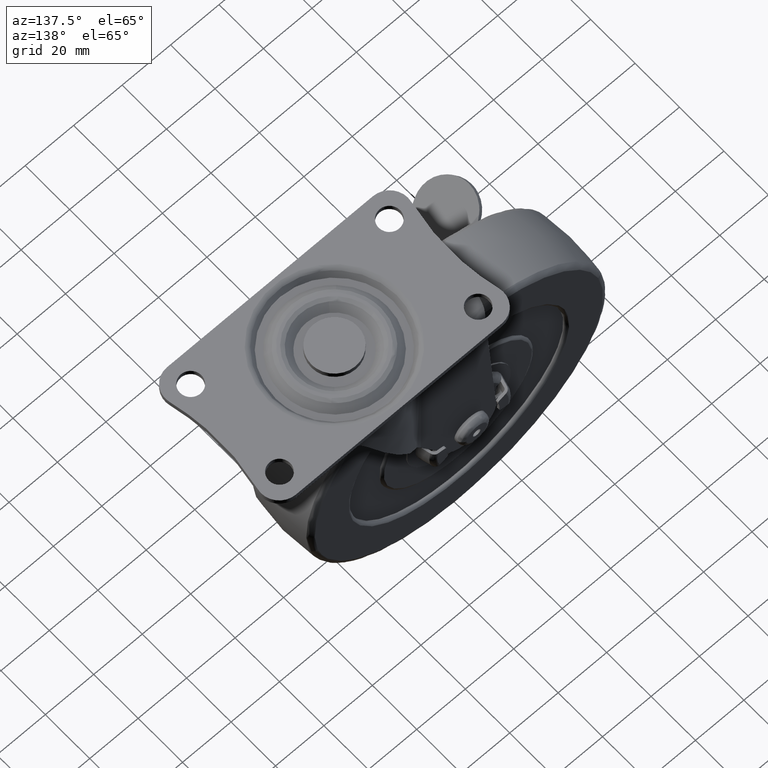
[diagram: clean part render]
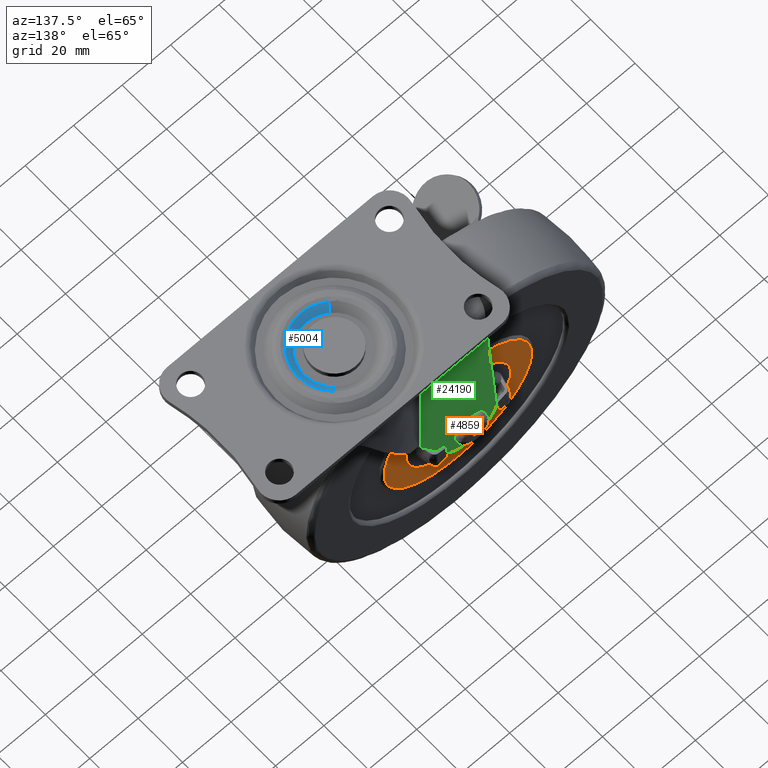
[diagram: same view with three faces highlighted in distinct colors, each labeled with its STEP entity id]
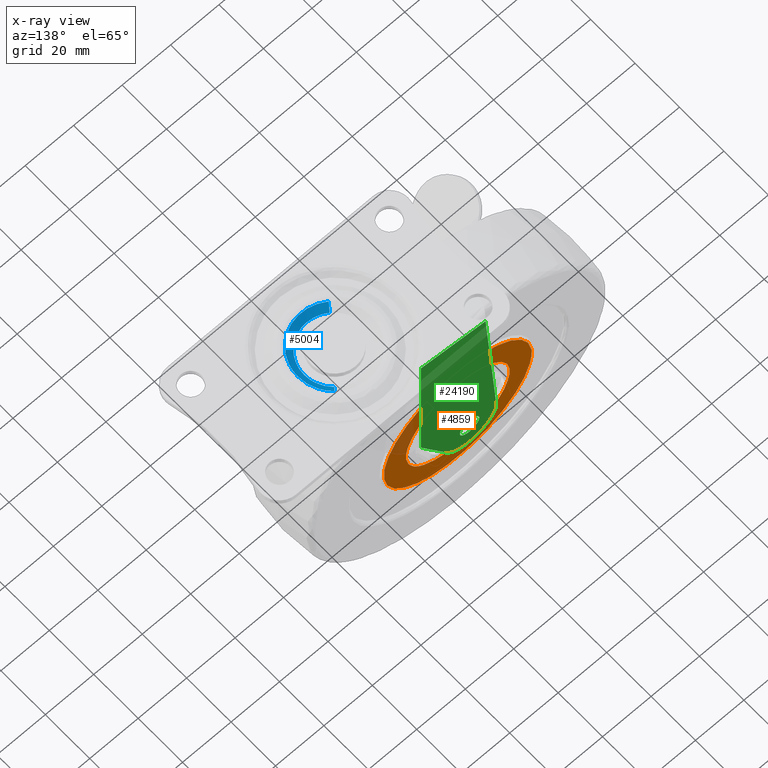
[diagram: x-ray of the same camera — body ghosted, the three highlighted faces saturated]
A machine part, auxiliary view with three faces highlighted in distinct colors.
The next image is the same camera in x-ray (body ghosted, the three faces saturated) — at least one of them is partly hidden behind the body in this view.
Their STEP definitions:

[orange] entity #4859 — the highlighted face is a freeform B-spline surface patch.
#341=CARTESIAN_POINT('',(-14.999457598083460,13.0,-15.263558694621940));
#342=VERTEX_POINT('',#341);
#348=CARTESIAN_POINT('',(-21.399999999999530,13.0,0.000004462280184));
#349=VERTEX_POINT('',#348);
#350=CARTESIAN_POINT('',(-14.999457598083460,13.0,-15.263558694621940));
#351=CARTESIAN_POINT('',(-16.199234600044409,13.0,-14.085064083934130));
#352=CARTESIAN_POINT('',(-18.262711877267542,13.000000000000020,-11.512706117761830));
#353=CARTESIAN_POINT('',(-20.071149148300570,12.999999999999970,-7.737484863761214));
#354=CARTESIAN_POINT('',(-21.146793419577381,13.000000000000050,-3.894419569668775));
#355=CARTESIAN_POINT('',(-21.400266748533738,12.999999999999970,-1.504721560239965));
#356=CARTESIAN_POINT('',(-21.399999999999530,13.0,0.000004462280184));
#357=B_SPLINE_CURVE_WITH_KNOTS('',3,(#350,#351,#352,#353,#354,#355,#356),.UNSPECIFIED.,.F.,.U.,(4,1,1,1,4),(0.000000043235449,5.045217000118539,9.824843374919411,12.480249518190050,16.994383786819110),.UNSPECIFIED.);
#358=EDGE_CURVE('',#342,#349,#357,.T.);
#360=CARTESIAN_POINT('',(0.0,13.0,21.399999999999999));
#361=VERTEX_POINT('',#360);
#362=CARTESIAN_POINT('',(-21.399999999999530,13.0,0.000004462280184));
#363=CARTESIAN_POINT('',(-21.400166145443610,13.000000000000011,1.488149907927293));
#364=CARTESIAN_POINT('',(-21.061042615102430,12.999999999999959,4.727133469329172));
#365=CARTESIAN_POINT('',(-19.626547902846632,13.000000000000091,8.897230360487237));
#366=CARTESIAN_POINT('',(-17.659966996768851,12.999999999999840,12.223490391673170));
#367=CARTESIAN_POINT('',(-15.505550436836909,13.000000000000240,14.881896763776981));
#368=CARTESIAN_POINT('',(-13.213149344947491,12.999999999999860,16.934143466605740));
#369=CARTESIAN_POINT('',(-10.578097900945391,13.000000000000041,18.671446317348469));
#370=CARTESIAN_POINT('',(-8.132714586972684,13.000000000000140,19.864949785670131));
#371=CARTESIAN_POINT('',(-4.551782247253562,12.999999999999790,21.048057301476980));
#372=CARTESIAN_POINT('',(-1.838385655638134,13.000000000000121,21.400597538661700));
#373=CARTESIAN_POINT('',(0.0,13.0,21.399999999999999));
#374=B_SPLINE_CURVE_WITH_KNOTS('',3,(#362,#363,#364,#365,#366,#367,#368,#369,#370,#371,#372,#373),.UNSPECIFIED.,.F.,.U.,(4,1,1,1,1,1,1,1,1,4),(0.000000119827241,4.464480332643383,9.716924076704739,13.130996557176211,16.019857173357220,19.958990738042250,22.322610503430280,25.474062481329170,28.100280142519029,33.615249798499470),.UNSPECIFIED.);
#375=EDGE_CURVE('',#349,#361,#374,.T.);
#377=CARTESIAN_POINT('',(21.399999999999530,13.0,-0.000004462280174));
#378=VERTEX_POINT('',#377);
#379=CARTESIAN_POINT('',(0.0,13.0,21.399999999999999));
#380=CARTESIAN_POINT('',(1.137986750092563,13.000000000000020,21.400041196904478));
#381=CARTESIAN_POINT('',(3.764205498987456,12.999999999999980,21.190196727932729));
#382=CARTESIAN_POINT('',(7.162965183895405,12.999999999999989,20.272044794821401));
#383=CARTESIAN_POINT('',(10.591748805980940,13.000000000000041,18.701501533709290));
#384=CARTESIAN_POINT('',(13.444083189804880,12.999999999999931,16.795671912854619));
#385=CARTESIAN_POINT('',(16.036397300099530,13.000000000000050,14.296908462654560));
#386=CARTESIAN_POINT('',(18.215610886097299,12.999999999999959,11.432856975091530));
#387=CARTESIAN_POINT('',(20.038765689711472,13.000000000000020,7.919378150864452));
#388=CARTESIAN_POINT('',(21.166389185856382,12.999999999999989,3.939229068232123));
#389=CARTESIAN_POINT('',(21.400066840773629,13.0,1.225525087528824));
#390=CARTESIAN_POINT('',(21.399999999999530,13.0,-0.000004462280174));
#391=B_SPLINE_CURVE_WITH_KNOTS('',3,(#379,#380,#381,#382,#383,#384,#385,#386,#387,#388,#389,#390),.UNSPECIFIED.,.F.,.U.,(4,1,1,1,1,1,1,1,1,4),(0.000000118282898,3.414005411149013,7.878571120669303,10.504790530938051,14.706678523279910,18.120642072758550,21.272116336369791,25.474066293722441,29.938645119108141,33.615254828560722),.UNSPECIFIED.);
#392=EDGE_CURVE('',#361,#378,#391,.T.);
#394=CARTESIAN_POINT('',(15.263560291745190,13.0,-14.999459155562359));
#395=VERTEX_POINT('',#394);
#396=CARTESIAN_POINT('',(21.399999999999530,13.0,-0.000004462280174));
#397=CARTESIAN_POINT('',(21.400380146424041,12.999999999999980,-1.644806273393332));
#398=CARTESIAN_POINT('',(21.088974731094869,13.000000000000030,-4.328188812983380));
#399=CARTESIAN_POINT('',(19.870291796351101,12.999999999999989,-8.221357010151010));
#400=CARTESIAN_POINT('',(18.086293362224190,13.000000000000050,-11.704994304769830));
#401=CARTESIAN_POINT('',(16.295184904170160,12.999999999999959,-13.949942126637239));
#402=CARTESIAN_POINT('',(15.263560291745190,13.0,-14.999459155562359));
#403=B_SPLINE_CURVE_WITH_KNOTS('',3,(#396,#397,#398,#399,#400,#401,#402),.UNSPECIFIED.,.F.,.U.,(4,1,1,1,4),(0.000000048413728,4.934321486368699,8.050759430382469,12.205946946968030,16.620868586272810),.UNSPECIFIED.);
#404=EDGE_CURVE('',#378,#395,#403,.T.);
#441=CARTESIAN_POINT('',(0.0,13.0,-21.399999999999999));
#442=VERTEX_POINT('',#441);
#443=CARTESIAN_POINT('',(15.263560291745190,13.0,-14.999459155562359));
#444=CARTESIAN_POINT('',(14.209071081765421,13.0,-16.072889629275132));
#445=CARTESIAN_POINT('',(12.353326343013659,12.999999999999980,-17.599689584263789));
#446=CARTESIAN_POINT('',(8.892474991636600,13.000000000000030,-19.586794429970752));
#447=CARTESIAN_POINT('',(4.956532786388010,12.999999999999980,-21.012015005515391));
#448=CARTESIAN_POINT('',(1.681752708444515,13.000000000000011,-21.400322760488692));
#449=CARTESIAN_POINT('',(0.0,13.0,-21.399999999999999));
#450=B_SPLINE_CURVE_WITH_KNOTS('',3,(#443,#444,#445,#446,#447,#448,#449),.UNSPECIFIED.,.F.,.U.,(4,1,1,1,4),(0.000000043206899,4.514133364085412,7.169538949831114,11.949164321165121,16.994380218791900),.UNSPECIFIED.);
#451=EDGE_CURVE('',#395,#442,#450,.T.);
#453=CARTESIAN_POINT('',(0.0,13.0,-21.399999999999999));
#454=CARTESIAN_POINT('',(-0.952223451578515,13.000000000000011,-21.400011581623222));
#455=CARTESIAN_POINT('',(-3.289549519116116,12.999999999999989,-21.243862841954300));
#456=CARTESIAN_POINT('',(-6.591802872307427,13.000000000000011,-20.468735230164491));
#457=CARTESIAN_POINT('',(-9.629050196834900,12.999999999999980,-19.182711877928909));
#458=CARTESIAN_POINT('',(-12.391230663326350,13.000000000000020,-17.549581269754309));
#459=CARTESIAN_POINT('',(-14.073391725202720,13.000000000000050,-16.173792978690560));
#460=CARTESIAN_POINT('',(-14.999457598083460,13.0,-15.263558694621940));
#461=B_SPLINE_CURVE_WITH_KNOTS('',3,(#453,#454,#455,#456,#457,#458,#459,#460),.UNSPECIFIED.,.F.,.U.,(4,1,1,1,1,4),(0.000000048387705,2.856698859118625,7.011956524252936,10.128334959274220,12.725358716434480,16.620872190896510),.UNSPECIFIED.);
#462=EDGE_CURVE('',#442,#342,#461,.T.);
#1714=CARTESIAN_POINT('',(-10.775710017537680,12.999999999999989,-28.533034879077810));
#1715=VERTEX_POINT('',#1714);
#1726=CARTESIAN_POINT('',(0.0,13.0,-30.500000000000000));
#1727=VERTEX_POINT('',#1726);
#1728=CARTESIAN_POINT('',(0.0,13.0,-30.500000000000000));
#1729=CARTESIAN_POINT('',(-1.950326551123727,13.000000000000030,-30.500262466162368));
#1730=CARTESIAN_POINT('',(-5.621380401909918,12.999999999999959,-30.146542498187120));
#1731=CARTESIAN_POINT('',(-9.165869497514029,13.000000000000011,-29.141156856346338));
#1732=CARTESIAN_POINT('',(-10.775710017537680,12.999999999999989,-28.533034879077810));
#1733=B_SPLINE_CURVE_WITH_KNOTS('',3,(#1728,#1729,#1730,#1731,#1732),.UNSPECIFIED.,.F.,.U.,(4,1,4),(7.056201E-009,5.850947564591087,11.013558242283100),.UNSPECIFIED.);
#1734=EDGE_CURVE('',#1727,#1715,#1733,.T.);
#1736=CARTESIAN_POINT('',(30.499999999999769,13.0,-0.000003732893796));
#1737=VERTEX_POINT('',#1736);
#1738=CARTESIAN_POINT('',(30.499999999999769,13.0,-0.000003732893796));
#1739=CARTESIAN_POINT('',(30.500621004749629,13.0,-2.432954617941308));
#1740=CARTESIAN_POINT('',(30.019624236460022,13.000000000000020,-6.425100903868943));
#1741=CARTESIAN_POINT('',(28.502884161946689,13.0,-11.063542281389450));
#1742=CARTESIAN_POINT('',(26.816510864033042,13.000000000000011,-14.686425201594190));
#1743=CARTESIAN_POINT('',(24.507784932465150,13.0,-18.408062929629530));
#1744=CARTESIAN_POINT('',(21.133797562240431,13.000000000000011,-22.200158376957809));
#1745=CARTESIAN_POINT('',(16.775709568676110,13.0,-25.666263442198691));
#1746=CARTESIAN_POINT('',(11.751966971773420,13.000000000000011,-28.371712412779669));
#1747=CARTESIAN_POINT('',(5.926193085948219,13.000000000000011,-30.119069941179770));
#1748=CARTESIAN_POINT('',(1.933845258521732,13.0,-30.500213238721329));
#1749=CARTESIAN_POINT('',(0.0,13.0,-30.500000000000000));
#1750=B_SPLINE_CURVE_WITH_KNOTS('',3,(#1738,#1739,#1740,#1741,#1742,#1743,#1744,#1745,#1746,#1747,#1748,#1749),.UNSPECIFIED.,.F.,.U.,(4,1,1,1,1,1,1,1,1,4),(0.000000162764785,7.298679614567355,11.977340525399001,14.597387641798820,19.276056271426171,25.077505158912910,29.756176943270880,35.932020800778901,42.107864656551683,47.909361019094369),.UNSPECIFIED.);
#1751=EDGE_CURVE('',#1737,#1727,#1750,.T.);
#1753=CARTESIAN_POINT('',(0.0,13.0,30.500000000000000));
#1754=VERTEX_POINT('',#1753);
#1755=CARTESIAN_POINT('',(0.0,13.0,30.500000000000000));
#1756=CARTESIAN_POINT('',(2.432953534480247,12.999999999999980,30.500624515964319));
#1757=CARTESIAN_POINT('',(6.425090811971906,12.999999999999980,30.019612403884299));
#1758=CARTESIAN_POINT('',(11.241953674009720,13.000000000000060,28.444553929886460));
#1759=CARTESIAN_POINT('',(15.189103224331131,13.000000000000069,26.562927970091600));
#1760=CARTESIAN_POINT('',(18.743618387248969,12.999999999999901,24.219295521404909));
#1761=CARTESIAN_POINT('',(22.347821468448359,13.000000000000080,20.932388874324861));
#1762=CARTESIAN_POINT('',(25.685434001609849,13.000000000000011,16.788701675475650));
#1763=CARTESIAN_POINT('',(28.420438801771461,12.999999999999790,11.634303420545409));
#1764=CARTESIAN_POINT('',(30.130908929878430,13.000000000000320,5.801430548480487));
#1765=CARTESIAN_POINT('',(30.500226084624622,12.999999999999480,1.933838962632630));
#1766=CARTESIAN_POINT('',(30.499999999999769,13.0,-0.000003732893796));
#1767=B_SPLINE_CURVE_WITH_KNOTS('',3,(#1755,#1756,#1757,#1758,#1759,#1760,#1761,#1762,#1763,#1764,#1765,#1766),.UNSPECIFIED.,.F.,.U.,(4,1,1,1,1,1,1,1,1,4),(0.000000162491354,7.298680255709328,11.977341577115730,15.158851344719750,20.398914474985730,24.703228457905990,29.756179558813589,36.306316244074182,42.107868355974922,47.909365226942199),.UNSPECIFIED.);
#1768=EDGE_CURVE('',#1754,#1737,#1767,.T.);
#1770=CARTESIAN_POINT('',(-30.500000003521169,13.0,3.546847E-015));
#1771=VERTEX_POINT('',#1770);
#1772=CARTESIAN_POINT('',(-30.500000003521169,13.0,3.546847E-015));
#1773=CARTESIAN_POINT('',(-30.500018148033082,12.999999999999989,1.372375797248120));
#1774=CARTESIAN_POINT('',(-30.276649115736820,13.000000000000041,4.678641604321212));
#1775=CARTESIAN_POINT('',(-29.161947988861641,12.999999999999940,9.437640540332902));
#1776=CARTESIAN_POINT('',(-27.277223706738230,13.000000000000020,13.871278233698719));
#1777=CARTESIAN_POINT('',(-24.725586476736162,12.999999999999989,18.099429808712891));
#1778=CARTESIAN_POINT('',(-21.420053186310039,12.999999999999989,21.955342574232020));
#1779=CARTESIAN_POINT('',(-17.617342752970199,13.000000000000011,25.017741368585661));
#1780=CARTESIAN_POINT('',(-14.080457495190380,13.000000000000020,27.137591562949542));
#1781=CARTESIAN_POINT('',(-10.770352140187461,12.999999999999970,28.617015553871791));
#1782=CARTESIAN_POINT('',(-6.050799684668885,13.000000000000041,30.064714988375862));
#1783=CARTESIAN_POINT('',(-2.432949724962354,12.999999999999901,30.500574210162011));
#1784=CARTESIAN_POINT('',(0.0,13.0,30.500000000000000));
#1785=B_SPLINE_CURVE_WITH_KNOTS('',3,(#1772,#1773,#1774,#1775,#1776,#1777,#1778,#1779,#1780,#1781,#1782,#1783,#1784),.UNSPECIFIED.,.F.,.U.,(4,1,1,1,1,1,1,1,1,1,4),(0.000000162695194,4.117149611645701,9.918722003114247,14.597388283752560,18.527482705596981,24.703227373485230,29.756178253468711,33.124809613105398,37.054900541147703,40.610702902157328,47.909363126888131),.UNSPECIFIED.);
#1786=EDGE_CURVE('',#1771,#1754,#1785,.T.);
#1882=CARTESIAN_POINT('',(-10.775710017537680,12.999999999999989,-28.533034879077810));
#1883=CARTESIAN_POINT('',(-12.843290181633879,13.0,-27.752668050122409));
#1884=CARTESIAN_POINT('',(-15.859224589502430,13.000000000000030,-26.220669941670849));
#1885=CARTESIAN_POINT('',(-19.887597061520449,13.0,-23.251489943192780));
#1886=CARTESIAN_POINT('',(-23.340379485353829,13.000000000000011,-19.888851955774740));
#1887=CARTESIAN_POINT('',(-26.814309546383509,13.000000000000011,-15.013325965392861));
#1888=CARTESIAN_POINT('',(-29.145973384946419,13.000000000000041,-9.594901050865079));
#1889=CARTESIAN_POINT('',(-30.288459987760259,12.999999999999901,-4.419777756611530));
#1890=CARTESIAN_POINT('',(-30.500054498094361,13.000000000000130,-1.441240715960359));
#1891=CARTESIAN_POINT('',(-30.500000003521169,13.0,3.546847E-015));
#1892=B_SPLINE_CURVE_WITH_KNOTS('',3,(#1882,#1883,#1884,#1885,#1886,#1887,#1888,#1889,#1890,#1891),.UNSPECIFIED.,.F.,.U.,(4,1,1,1,1,1,1,4),(0.000000097634576,6.629720871084039,10.088735161346550,14.989014476484421,21.042165359612842,27.960196097942681,32.572189093564759,36.895925509791716),.UNSPECIFIED.);
#1893=EDGE_CURVE('',#1715,#1771,#1892,.T.);
#4839=CARTESIAN_POINT('',(-33.546949885467207,13.0,33.546949881770168));
#4840=CARTESIAN_POINT('',(-33.546949885467207,13.0,-33.546951517917662));
#4841=CARTESIAN_POINT('',(33.546951518093309,13.0,33.546949881770168));
#4842=CARTESIAN_POINT('',(33.546951518093309,13.0,-33.546951517917662));
#4843=B_SPLINE_SURFACE_WITH_KNOTS('',1,1,((#4839,#4841),(#4840,#4842)),.UNSPECIFIED.,.F.,.F.,.U.,(2,2),(2,2),(0.0,67.093901399687837),(0.0,67.093901403560523),.UNSPECIFIED.);
#4844=ORIENTED_EDGE('',*,*,#1734,.T.);
#4845=ORIENTED_EDGE('',*,*,#1893,.T.);
#4846=ORIENTED_EDGE('',*,*,#1786,.T.);
#4847=ORIENTED_EDGE('',*,*,#1768,.T.);
#4848=ORIENTED_EDGE('',*,*,#1751,.T.);
#4849=EDGE_LOOP('',(#4844,#4845,#4846,#4847,#4848));
#4850=FACE_OUTER_BOUND('',#4849,.T.);
#4851=ORIENTED_EDGE('',*,*,#375,.F.);
#4852=ORIENTED_EDGE('',*,*,#358,.F.);
#4853=ORIENTED_EDGE('',*,*,#462,.F.);
#4854=ORIENTED_EDGE('',*,*,#451,.F.);
#4855=ORIENTED_EDGE('',*,*,#404,.F.);
#4856=ORIENTED_EDGE('',*,*,#392,.F.);
#4857=EDGE_LOOP('',(#4851,#4852,#4853,#4854,#4855,#4856));
#4858=FACE_BOUND('',#4857,.T.);
#4859=ADVANCED_FACE('',(#4850,#4858),#4843,.F.);

[blue] entity #5004 — the highlighted face is a freeform B-spline surface patch.
#4901=CARTESIAN_POINT('',(31.714021477402582,-10.076436730526302,82.234104538506344));
#4902=CARTESIAN_POINT('',(40.687004759844044,-16.564540137302654,82.234104538506344));
#4903=CARTESIAN_POINT('',(48.167771986907951,-8.400715267887389,82.234104538506344));
#4904=CARTESIAN_POINT('',(56.568487254795343,0.767056719020559,82.234104538506330));
#4905=CARTESIAN_POINT('',(47.400715267887392,9.167771986907948,82.234104538506344));
#4906=CARTESIAN_POINT('',(30.104372062963812,-12.302566059979609,84.981216299766771));
#4907=CARTESIAN_POINT('',(41.059705038250897,-20.224048911554629,84.981216299766771));
#4908=CARTESIAN_POINT('',(50.193155230169801,-10.256637073020730,84.981216299766771));
#4909=CARTESIAN_POINT('',(60.449792303190542,0.936518157149067,84.981216299766785));
#4910=CARTESIAN_POINT('',(49.256637073020727,11.193155230169801,84.981216299766771));
#4918=(BOUNDED_SURFACE()B_SPLINE_SURFACE(2,1,((#4901,#4906),(#4902,#4907),(#4903,#4908),(#4904,#4909),(#4905,#4910)),.UNSPECIFIED.,.F.,.F.,.U.)B_SPLINE_SURFACE_WITH_KNOTS((3,2,3),(2,2),(0.0,23.141620950247571,48.295556765734062),(0.0,3.885002710129130),.UNSPECIFIED.)GEOMETRIC_REPRESENTATION_ITEM()RATIONAL_B_SPLINE_SURFACE(((0.956886118190660,0.956886118190660),(0.730538238691624,0.730538238691624),(1.0,1.0),(0.707106781186548,0.707106781186548),(1.0,1.0)))REPRESENTATION_ITEM('')SURFACE());
#4919=CARTESIAN_POINT('',(38.999997126832021,-12.499999999999670,82.299473051564291));
#4920=VERTEX_POINT('',#4919);
#4921=CARTESIAN_POINT('',(31.675718690741270,-10.129409108249961,82.299473392623668));
#4922=VERTEX_POINT('',#4921);
#4923=CARTESIAN_POINT('',(38.999997126832021,-12.499999999999670,82.299473051564291));
#4924=CARTESIAN_POINT('',(38.021779169514240,-12.500211853027571,82.299473097115623));
#4925=CARTESIAN_POINT('',(36.391581278236252,-12.307594202472581,82.299473173026612));
#4926=CARTESIAN_POINT('',(33.902199400570787,-11.501873141245509,82.299473288946402));
#4927=CARTESIAN_POINT('',(32.468287555133763,-10.702770287452520,82.299473355717254));
#4928=CARTESIAN_POINT('',(31.675718690741270,-10.129409108249961,82.299473392623668));
#4929=B_SPLINE_CURVE_WITH_KNOTS('',3,(#4923,#4924,#4925,#4926,#4927,#4928),.UNSPECIFIED.,.F.,.U.,(4,1,1,4),(0.000000040863334,2.934600681313966,4.890960379364063,7.825561019900397),.UNSPECIFIED.);
#4930=EDGE_CURVE('',#4920,#4922,#4929,.T.);
#4931=ORIENTED_EDGE('',*,*,#4930,.T.);
#4932=CARTESIAN_POINT('',(30.143631805916581,-12.248270221103510,84.914213571941843));
#4933=VERTEX_POINT('',#4932);
#4934=CARTESIAN_POINT('',(31.675718690741270,-10.129409108249961,82.299473392623668));
#4935=CARTESIAN_POINT('',(30.143631805916581,-12.248270221103510,84.914213571941843));
#4936=QUASI_UNIFORM_CURVE('',1,(#4934,#4935),.UNSPECIFIED.,.F.,.U.);
#4937=EDGE_CURVE('',#4922,#4933,#4936,.T.);
#4938=ORIENTED_EDGE('',*,*,#4937,.T.);
#4939=CARTESIAN_POINT('',(54.114740510808900,0.0,84.914213562373206));
#4940=VERTEX_POINT('',#4939);
#4941=CARTESIAN_POINT('',(30.143631805916581,-12.248270221103510,84.914213571941843));
#4942=CARTESIAN_POINT('',(30.844297351854639,-12.754969130322941,84.914213571313439));
#4943=CARTESIAN_POINT('',(32.370128940579399,-13.670009369796221,84.914213570020820));
#4944=CARTESIAN_POINT('',(34.682144117007788,-14.551680480535451,84.914213568266319));
#4945=CARTESIAN_POINT('',(37.142849701122472,-15.064709455505310,84.914213566569316));
#4946=CARTESIAN_POINT('',(39.354381230187073,-15.168289215353941,84.914213565189641));
#4947=CARTESIAN_POINT('',(41.680846014440469,-14.926888446016340,84.914213563879144));
#4948=CARTESIAN_POINT('',(43.827044712892032,-14.390318263985360,84.914213562795823));
#4949=CARTESIAN_POINT('',(46.578840663143907,-13.215265581363260,84.914213561606289));
#4950=CARTESIAN_POINT('',(49.317373474854200,-11.267519352552940,84.914213560731000));
#4951=CARTESIAN_POINT('',(51.530686303578783,-8.635847279001840,84.914213560458080));
#4952=CARTESIAN_POINT('',(52.815063197791943,-6.271696238051470,84.914213560629648));
#4953=CARTESIAN_POINT('',(53.818613211357331,-3.501758969977582,84.914213561140400));
#4954=CARTESIAN_POINT('',(54.115341304546597,-1.426823781146414,84.914213561797581));
#4955=CARTESIAN_POINT('',(54.114740510808900,0.0,84.914213562373206));
#4956=B_SPLINE_CURVE_WITH_KNOTS('',3,(#4941,#4942,#4943,#4944,#4945,#4946,#4947,#4948,#4949,#4950,#4951,#4952,#4953,#4954,#4955),.UNSPECIFIED.,.F.,.U.,(4,1,1,1,1,1,1,1,1,1,1,1,4),(0.000000415038194,2.594050238562694,5.317924120268991,7.393246624344144,10.117103256397190,11.932987167960800,14.397433863189089,16.731951330879461,20.882612301605320,24.384739129566309,26.978870239527609,28.924515975577201,33.204752054369493),.UNSPECIFIED.);
#4957=EDGE_CURVE('',#4933,#4940,#4956,.T.);
#4958=ORIENTED_EDGE('',*,*,#4957,.T.);
#4959=CARTESIAN_POINT('',(49.211370678834072,11.143755629382600,84.914213561012332));
#4960=VERTEX_POINT('',#4959);
#4961=CARTESIAN_POINT('',(54.114740510808900,0.0,84.914213562373206));
#4962=CARTESIAN_POINT('',(54.115004433836333,1.174770266045258,84.914213561954838));
#4963=CARTESIAN_POINT('',(53.862339839233812,3.328325897580601,84.914213561323237));
#4964=CARTESIAN_POINT('',(52.947838467319137,5.995489232989744,84.914213560859281));
#4965=CARTESIAN_POINT('',(51.526015333136243,8.646763142356843,84.914213560671541));
#4966=CARTESIAN_POINT('',(50.222269654650972,10.218191625727560,84.914213560804171));
#4967=CARTESIAN_POINT('',(49.211370678834072,11.143755629382600,84.914213561012332));
#4968=B_SPLINE_CURVE_WITH_KNOTS('',3,(#4961,#4962,#4963,#4964,#4965,#4966,#4967),.UNSPECIFIED.,.F.,.U.,(4,1,1,1,4),(0.000000068311952,3.524256127828702,6.461098751426415,8.419035483776693,12.530682007331359),.UNSPECIFIED.);
#4969=EDGE_CURVE('',#4940,#4960,#4968,.T.);
#4970=ORIENTED_EDGE('',*,*,#4969,.T.);
#4971=CARTESIAN_POINT('',(47.444878320332982,9.215967501473745,82.299473409343619));
#4972=VERTEX_POINT('',#4971);
#4973=CARTESIAN_POINT('',(47.444878320332982,9.215967501473745,82.299473409343619));
#4974=CARTESIAN_POINT('',(49.211370678834072,11.143755629382600,84.914213561012332));
#4975=QUASI_UNIFORM_CURVE('',1,(#4973,#4974),.UNSPECIFIED.,.F.,.U.);
#4976=EDGE_CURVE('',#4972,#4960,#4975,.T.);
#4977=ORIENTED_EDGE('',*,*,#4976,.F.);
#4978=CARTESIAN_POINT('',(51.500000000000007,0.0,82.299473051564291));
#4979=VERTEX_POINT('',#4978);
#4980=CARTESIAN_POINT('',(47.444878320332982,9.215967501473745,82.299473409343619));
#4981=CARTESIAN_POINT('',(48.480270984993709,8.268495416875224,82.299473372561167));
#4982=CARTESIAN_POINT('',(49.856049041403729,6.495467562230844,82.299473303729258));
#4983=CARTESIAN_POINT('',(51.191810985029939,3.292064335757657,82.299473179367752));
#4984=CARTESIAN_POINT('',(51.500570618551080,1.241465868611044,82.299473099760135));
#4985=CARTESIAN_POINT('',(51.500000000000007,0.0,82.299473051564291));
#4986=B_SPLINE_CURVE_WITH_KNOTS('',3,(#4980,#4981,#4982,#4983,#4984,#4985),.UNSPECIFIED.,.F.,.U.,(4,1,1,4),(0.000000076894697,4.209986371209614,6.638751680182395,10.362965326269080),.UNSPECIFIED.);
#4987=EDGE_CURVE('',#4972,#4979,#4986,.T.);
#4988=ORIENTED_EDGE('',*,*,#4987,.T.);
#4989=CARTESIAN_POINT('',(51.500000000000007,0.0,82.299473051564291));
#4990=CARTESIAN_POINT('',(51.500838468457722,-1.329571690025545,82.299473051564163));
#4991=CARTESIAN_POINT('',(51.170407509834149,-3.374338003413855,82.299473051564561));
#4992=CARTESIAN_POINT('',(49.997520185924323,-6.110247478991944,82.299473051564149));
#4993=CARTESIAN_POINT('',(48.455217326036433,-8.358713547306031,82.299473051564348));
#4994=CARTESIAN_POINT('',(46.227201413651223,-10.353353562193350,82.299473051563709));
#4995=CARTESIAN_POINT('',(43.721826852406927,-11.672576904548290,82.299473051565215));
#4996=CARTESIAN_POINT('',(41.300929951623623,-12.358377322036590,82.299473051564320));
#4997=CARTESIAN_POINT('',(39.766979249640563,-12.500072175291590,82.299473051563510));
#4998=CARTESIAN_POINT('',(38.999997126832021,-12.499999999999670,82.299473051564291));
#4999=B_SPLINE_CURVE_WITH_KNOTS('',3,(#4989,#4990,#4991,#4992,#4993,#4994,#4995,#4996,#4997,#4998),.UNSPECIFIED.,.F.,.U.,(4,1,1,1,1,1,1,4),(0.000000274322844,3.988369173637574,6.135989011276754,8.897190399776447,12.118492404072679,15.033110631209700,17.334126142063919,19.635078905329799),.UNSPECIFIED.);
#5000=EDGE_CURVE('',#4979,#4920,#4999,.T.);
#5001=ORIENTED_EDGE('',*,*,#5000,.T.);
#5002=EDGE_LOOP('',(#4931,#4938,#4958,#4970,#4977,#4988,#5001));
#5003=FACE_OUTER_BOUND('',#5002,.T.);
#5004=ADVANCED_FACE('',(#5003),#4918,.F.);

[green] entity #24190 — the highlighted face is a freeform B-spline surface patch.
#20230=CARTESIAN_POINT('',(2.949110287342713,18.299990000000001,-2.702361691930848));
#20231=VERTEX_POINT('',#20230);
#20237=CARTESIAN_POINT('',(0.0,18.299990000000001,-4.0));
#20238=VERTEX_POINT('',#20237);
#20239=CARTESIAN_POINT('',(2.949110287342713,18.299990000000001,-2.702361691930848));
#20240=CARTESIAN_POINT('',(2.599392446496405,18.299990000000030,-3.084814510121799));
#20241=CARTESIAN_POINT('',(1.691821544569159,18.299989999999930,-3.751759008263312));
#20242=CARTESIAN_POINT('',(0.587386625028393,18.299990000000030,-4.000938288256032));
#20243=CARTESIAN_POINT('',(0.0,18.299990000000001,-4.0));
#20244=B_SPLINE_CURVE_WITH_KNOTS('',3,(#20239,#20240,#20241,#20242,#20243),.UNSPECIFIED.,.F.,.U.,(4,1,4),(0.000000130739438,1.554506051876837,3.316218821696118),.UNSPECIFIED.);
#20245=EDGE_CURVE('',#20231,#20238,#20244,.T.);
#20247=CARTESIAN_POINT('',(-3.999999999996724,18.299990000000001,0.000005119947363));
#20248=VERTEX_POINT('',#20247);
#20249=CARTESIAN_POINT('',(0.0,18.299990000000001,-4.0));
#20250=CARTESIAN_POINT('',(-0.392721891019645,18.299989999999980,-4.000185677307238));
#20251=CARTESIAN_POINT('',(-1.047077980684644,18.299990000000012,-3.902755933111385));
#20252=CARTESIAN_POINT('',(-2.110575187380150,18.299989999999980,-3.462588808545845));
#20253=CARTESIAN_POINT('',(-2.942046908944342,18.299990000000090,-2.797261527136078));
#20254=CARTESIAN_POINT('',(-3.537805409273785,18.299989999999880,-1.928089518624190));
#20255=CARTESIAN_POINT('',(-3.902787982327387,18.299990000000179,-1.047099837763846));
#20256=CARTESIAN_POINT('',(-4.000186871772065,18.299989999999880,-0.392715911434573));
#20257=CARTESIAN_POINT('',(-3.999999999996724,18.299990000000001,0.000005119947363));
#20258=B_SPLINE_CURVE_WITH_KNOTS('',3,(#20249,#20250,#20251,#20252,#20253,#20254,#20255,#20256,#20257),.UNSPECIFIED.,.F.,.U.,(4,1,1,1,1,1,4),(0.000000488140765,1.178123957096450,1.963549707979620,3.436135845139839,4.319796646593483,5.105222396590313,6.283345863140282),.UNSPECIFIED.);
#20259=EDGE_CURVE('',#20238,#20248,#20258,.T.);
#20261=CARTESIAN_POINT('',(0.0,18.299990000000001,4.0));
#20262=VERTEX_POINT('',#20261);
#20263=CARTESIAN_POINT('',(-3.999999999996724,18.299990000000001,0.000005119947363));
#20264=CARTESIAN_POINT('',(-4.000119701943486,18.299990000000012,0.392700827311004));
#20265=CARTESIAN_POINT('',(-3.873894797773232,18.299989999999980,1.243576584201626));
#20266=CARTESIAN_POINT('',(-3.306565340092153,18.299990000000030,2.370818956477022));
#20267=CARTESIAN_POINT('',(-2.487635223468594,18.299989999999980,3.189370400137525));
#20268=CARTESIAN_POINT('',(-1.406666819974741,18.299990000000019,3.819441166429089));
#20269=CARTESIAN_POINT('',(-0.556480175610891,18.299990000000019,4.000774525939116));
#20270=CARTESIAN_POINT('',(0.0,18.299990000000001,4.0));
#20271=B_SPLINE_CURVE_WITH_KNOTS('',3,(#20263,#20264,#20265,#20266,#20267,#20268,#20269,#20270),.UNSPECIFIED.,.F.,.U.,(4,1,1,1,1,4),(0.000000495145948,1.178122879613898,2.552673060851723,3.730667524896142,4.614323834630174,6.283340091622296),.UNSPECIFIED.);
#20272=EDGE_CURVE('',#20248,#20262,#20271,.T.);
#20274=CARTESIAN_POINT('',(2.866602924300921,18.299990000000001,2.789727126131681));
#20275=VERTEX_POINT('',#20274);
#20276=CARTESIAN_POINT('',(0.0,18.299990000000001,4.0));
#20277=CARTESIAN_POINT('',(0.299622576522758,18.299990000000019,4.000042912488143));
#20278=CARTESIAN_POINT('',(0.932136016340947,18.299989999999990,3.928627487467573));
#20279=CARTESIAN_POINT('',(1.940881136988327,18.299990000000012,3.561022701596419));
#20280=CARTESIAN_POINT('',(2.564915739364616,18.299989999999990,3.100069280519297));
#20281=CARTESIAN_POINT('',(2.866602924300921,18.299990000000001,2.789727126131681));
#20282=B_SPLINE_CURVE_WITH_KNOTS('',3,(#20276,#20277,#20278,#20279,#20280,#20281),.UNSPECIFIED.,.F.,.U.,(4,1,1,4),(0.000000146784666,0.898889420287250,1.897621153676738,3.196036228613134),.UNSPECIFIED.);
#20283=EDGE_CURVE('',#20262,#20275,#20282,.T.);
#20318=CARTESIAN_POINT('',(3.999999999996724,18.299990000000001,-0.000005119947372));
#20319=VERTEX_POINT('',#20318);
#20320=CARTESIAN_POINT('',(2.866602924300921,18.299990000000001,2.789727126131681));
#20321=CARTESIAN_POINT('',(3.203326477695970,18.299990000000051,2.444246640606287));
#20322=CARTESIAN_POINT('',(3.785591430847236,18.299989999999958,1.575278653843529));
#20323=CARTESIAN_POINT('',(4.000577161881286,18.299990000000012,0.546767455448215));
#20324=CARTESIAN_POINT('',(3.999999999996724,18.299990000000001,-0.000005119947372));
#20325=B_SPLINE_CURVE_WITH_KNOTS('',3,(#20320,#20321,#20322,#20323,#20324),.UNSPECIFIED.,.F.,.U.,(4,1,4),(0.000000123685056,1.447210385619605,3.087311004173342),.UNSPECIFIED.);
#20326=EDGE_CURVE('',#20275,#20319,#20325,.T.);
#20328=CARTESIAN_POINT('',(3.999999999996724,18.299990000000001,-0.000005119947372));
#20329=CARTESIAN_POINT('',(4.000307784499364,18.299990000000019,-0.463658164771863));
#20330=CARTESIAN_POINT('',(3.826047868889115,18.299989999999969,-1.452408970630575));
#20331=CARTESIAN_POINT('',(3.304554248427369,18.299990000000019,-2.315322449676084));
#20332=CARTESIAN_POINT('',(2.949110287342713,18.299990000000001,-2.702361691930848));
#20333=B_SPLINE_CURVE_WITH_KNOTS('',3,(#20328,#20329,#20330,#20331,#20332),.UNSPECIFIED.,.F.,.U.,(4,1,4),(0.000000101515939,1.390867836470391,2.967121494463656),.UNSPECIFIED.);
#20334=EDGE_CURVE('',#20319,#20231,#20333,.T.);
#22209=CARTESIAN_POINT('',(20.102633358060100,18.299990000000001,70.409649439843790));
#22210=VERTEX_POINT('',#22209);
#22229=CARTESIAN_POINT('',(20.102633358060000,18.299990000000001,13.331849330000979));
#22230=VERTEX_POINT('',#22229);
#22239=CARTESIAN_POINT('',(20.102633358060100,18.299990000000001,70.409649439843790));
#22240=CARTESIAN_POINT('',(20.102633358060000,18.299990000000001,13.331849330000979));
#22241=QUASI_UNIFORM_CURVE('',1,(#22239,#22240),.UNSPECIFIED.,.F.,.U.);
#22242=EDGE_CURVE('',#22210,#22230,#22241,.T.);
#23291=CARTESIAN_POINT('',(-6.599504122434451,18.299990000000001,65.701342289655898));
#23292=VERTEX_POINT('',#23291);
#23293=CARTESIAN_POINT('',(-6.599504122434451,18.299990000000001,65.701342289655898));
#23294=CARTESIAN_POINT('',(20.102633358060100,18.299990000000001,70.409649439843790));
#23295=QUASI_UNIFORM_CURVE('',1,(#23293,#23294),.UNSPECIFIED.,.F.,.U.);
#23296=EDGE_CURVE('',#23292,#22210,#23295,.T.);
#23836=CARTESIAN_POINT('',(9.591182999999999,18.299990000000001,-5.386123999999881));
#23837=VERTEX_POINT('',#23836);
#23843=CARTESIAN_POINT('',(9.591182999999999,18.299990000000001,-5.386123999999881));
#23844=CARTESIAN_POINT('',(20.102633358060000,18.299990000000001,13.331849330000979));
#23845=QUASI_UNIFORM_CURVE('',1,(#23843,#23844),.UNSPECIFIED.,.F.,.U.);
#23846=EDGE_CURVE('',#23837,#22230,#23845,.T.);
#24011=CARTESIAN_POINT('',(-10.975132623484621,18.299990000000001,0.739232546349898));
#24012=VERTEX_POINT('',#24011);
#24018=CARTESIAN_POINT('',(9.591182999999999,18.299990000000001,-5.386123999999881));
#24019=CARTESIAN_POINT('',(9.269681112164731,18.299990000000012,-5.958758409784688));
#24020=CARTESIAN_POINT('',(8.523658218074115,18.299990000000001,-7.046173966267508));
#24021=CARTESIAN_POINT('',(7.186595527897869,18.299989999999969,-8.396812268265341));
#24022=CARTESIAN_POINT('',(5.359876999513102,18.299989999999969,-9.706487348907041));
#24023=CARTESIAN_POINT('',(3.031131321558377,18.299990000000040,-10.707395932236629));
#24024=CARTESIAN_POINT('',(0.525556575710885,18.299989999999969,-11.066611961486810));
#24025=CARTESIAN_POINT('',(-1.562867619558274,18.299990000000012,-10.934762782612390));
#24026=CARTESIAN_POINT('',(-3.491149671169648,18.299989999999990,-10.501711015332290));
#24027=CARTESIAN_POINT('',(-5.308572747570129,18.299990000000040,-9.710442355788318));
#24028=CARTESIAN_POINT('',(-7.099402656784617,18.299989999999859,-8.484566195254844));
#24029=CARTESIAN_POINT('',(-8.473859071770253,18.299990000000459,-7.112155273341030));
#24030=CARTESIAN_POINT('',(-9.592658762063589,18.299989999999760,-5.482885187699479));
#24031=CARTESIAN_POINT('',(-10.349789577866360,18.299990000000111,-3.868189875214053));
#24032=CARTESIAN_POINT('',(-10.939472113370440,18.299989999999870,-1.779702425420117));
#24033=CARTESIAN_POINT('',(-11.040329366574360,18.299990000000090,-0.224351914320404));
#24034=CARTESIAN_POINT('',(-10.975132623484621,18.299990000000001,0.739232546349898));
#24035=B_SPLINE_CURVE_WITH_KNOTS('',3,(#24018,#24019,#24020,#24021,#24022,#24023,#24024,#24025,#24026,#24027,#24028,#24029,#24030,#24031,#24032,#24033,#24034),.UNSPECIFIED.,.F.,.U.,(4,1,1,1,1,1,1,1,1,1,1,1,1,1,4),(0.000000693303850,1.970140995308153,3.940362467282814,5.678813734586047,8.692116351329972,11.473659233230000,13.212018629880401,14.950253514108780,17.384083479263818,19.122534361802519,21.440501186105571,23.178924825978982,25.033303864044861,26.771742689386979,29.669015942279099),.UNSPECIFIED.);
#24036=EDGE_CURVE('',#23837,#24012,#24035,.T.);
#24166=CARTESIAN_POINT('',(-12.550633605370320,18.299990000000001,-15.064252313149099));
#24167=CARTESIAN_POINT('',(-12.550633605370320,18.299990000000001,74.475960718824410));
#24168=CARTESIAN_POINT('',(21.656068335799841,18.299990000000001,-15.064252313149099));
#24169=CARTESIAN_POINT('',(21.656068335799841,18.299990000000001,74.475960718824410));
#24170=B_SPLINE_SURFACE_WITH_KNOTS('',1,1,((#24166,#24168),(#24167,#24169)),.UNSPECIFIED.,.F.,.F.,.U.,(2,2),(2,2),(0.0,89.540213031973508),(0.0,34.206701941170166),.UNSPECIFIED.);
#24171=ORIENTED_EDGE('',*,*,#23296,.T.);
#24172=ORIENTED_EDGE('',*,*,#22242,.T.);
#24173=ORIENTED_EDGE('',*,*,#23846,.F.);
#24174=ORIENTED_EDGE('',*,*,#24036,.T.);
#24175=CARTESIAN_POINT('',(-6.599504122434451,18.299990000000001,65.701342289655898));
#24176=CARTESIAN_POINT('',(-10.975132623484621,18.299990000000001,0.739232546349898));
#24177=QUASI_UNIFORM_CURVE('',1,(#24175,#24176),.UNSPECIFIED.,.F.,.U.);
#24178=EDGE_CURVE('',#23292,#24012,#24177,.T.);
#24179=ORIENTED_EDGE('',*,*,#24178,.F.);
#24180=EDGE_LOOP('',(#24171,#24172,#24173,#24174,#24179));
#24181=FACE_OUTER_BOUND('',#24180,.T.);
#24182=ORIENTED_EDGE('',*,*,#20259,.F.);
#24183=ORIENTED_EDGE('',*,*,#20245,.F.);
#24184=ORIENTED_EDGE('',*,*,#20334,.F.);
#24185=ORIENTED_EDGE('',*,*,#20326,.F.);
#24186=ORIENTED_EDGE('',*,*,#20283,.F.);
#24187=ORIENTED_EDGE('',*,*,#20272,.F.);
#24188=EDGE_LOOP('',(#24182,#24183,#24184,#24185,#24186,#24187));
#24189=FACE_BOUND('',#24188,.T.);
#24190=ADVANCED_FACE('',(#24181,#24189),#24170,.T.);